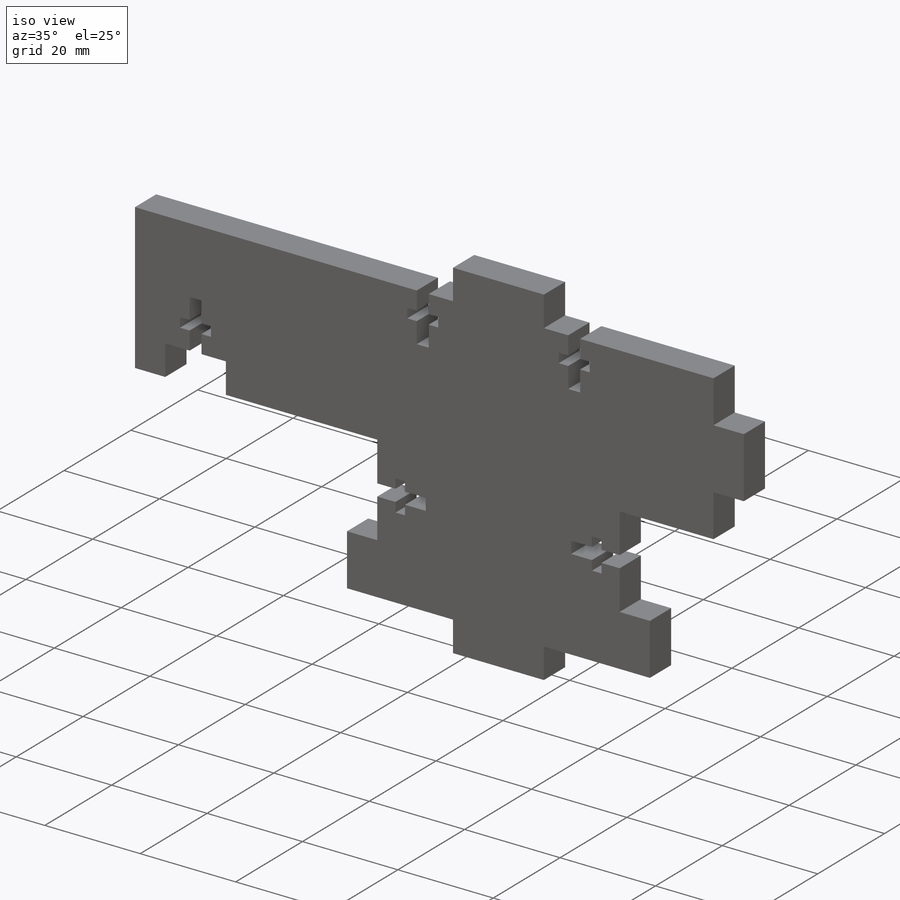
[diagram: iso view]
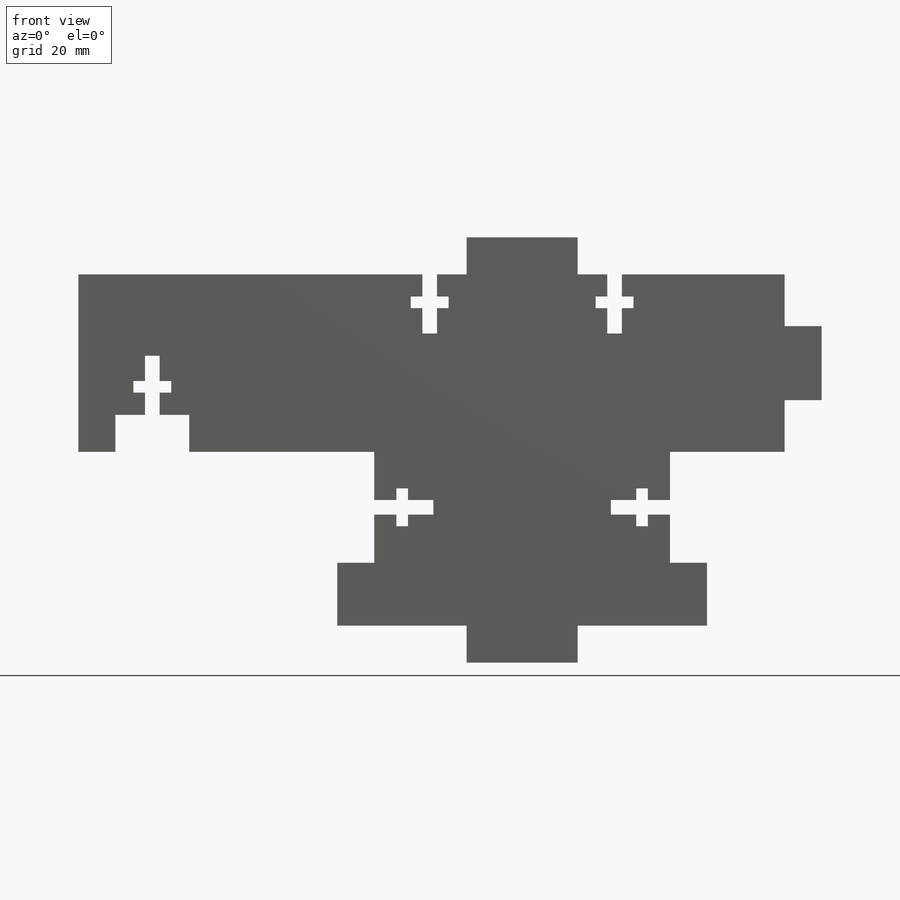
[diagram: front view]
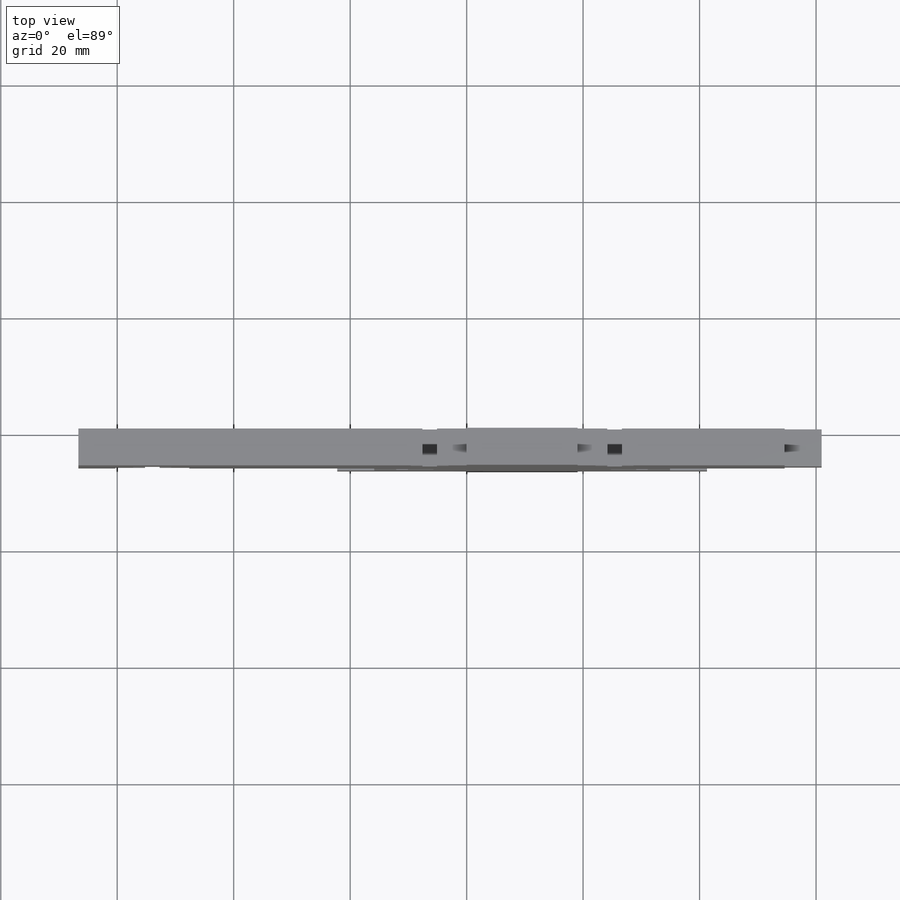
[diagram: top view]
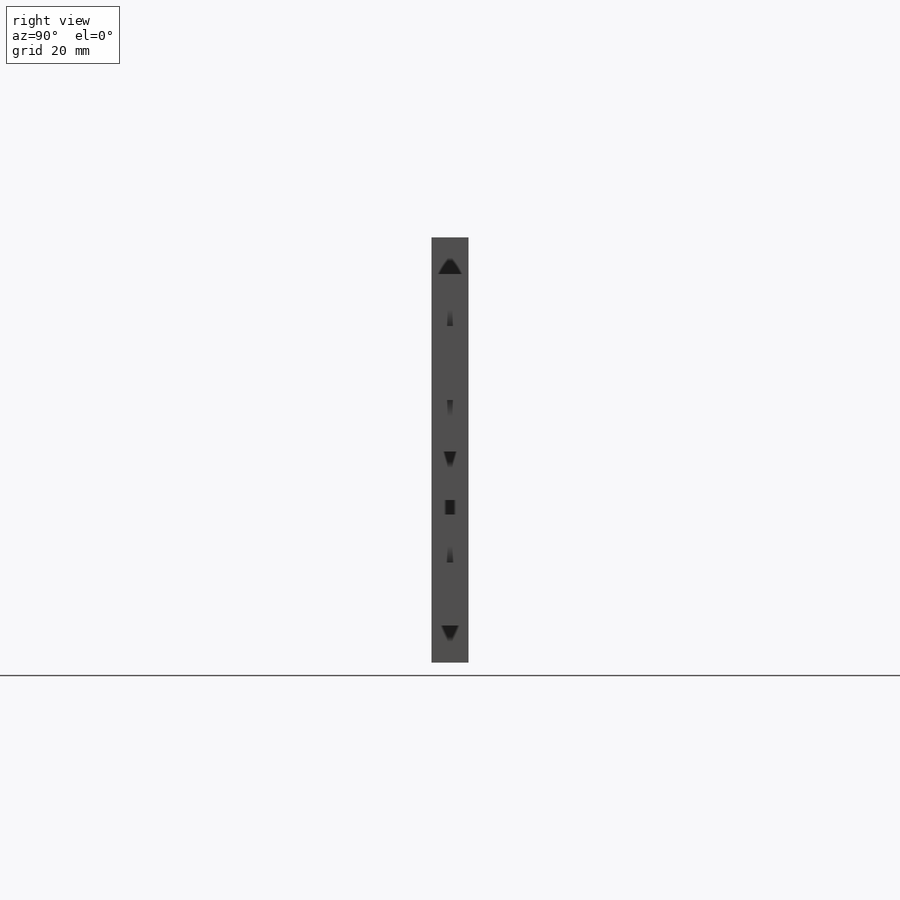
[diagram: right view]
SOLIDWORKS PART (.sldprt)
format: sldprt  version: not decoded by parser v0  size: 356,864 bytes
history: native  units: mm
features: sketch x4, cut_extrude x3, material x1, extrude x1 (+13 scaffold rows collapsed)
feature tree (22):
  scaffold x13  (default folders/planes/origin — collapsed)
  material  "Material <not specified>"
  sketch  "Sketch1"  dims[c1.D1=73.025mm c1.D2=25.4mm c1.D3=19.05mm c1.D4=6.35mm c2.D1=73.025mm c2.D2=50.8mm c2.D5=6.35mm c2.D6=25.4mm c2.D7=~30.823674mm c3.D2=6.35mm c3.D7=15.875mm c4.D2=6.35mm c4.D5=19.05mm c4.D6=127.635mm c4.D8=6.35mm c4.D9=12.7mm c4.D10=30.48mm c4.D11=50.8mm]
  extrude  "Boss-Extrude1"  Depth=6.35mm
  sketch  "Sketch2"  dims[D1=12.7mm D2=6.35mm D3=6.35mm]
  cut_extrude  "Cut-Extrude1"  [1 undecoded]
  sketch  "Sketch3"  dims[c1.D1=73.025mm c1.D2=25.4mm c1.D3=19.05mm c1.D4=6.35mm c2.D1=73.025mm c2.D2=50.8mm c2.D5=6.35mm c2.D6=19.05mm c2.D7=~30.823674mm c3.D2=6.35mm c3.D7=15.875mm c3.D8=30.48mm c3.D9=2.5mm c3.D10=2.0mm c3.D11=3.81mm c3.D12=10.16mm c4.D2=3.81mm c4.D3=10.16mm]
  cut_extrude  "Cut-Extrude2"  [1 undecoded]
  sketch  "Sketch5"  dims[c1.D1=73.025mm c1.D2=25.4mm c1.D3=19.05mm c1.D4=6.35mm c2.D1=73.025mm c2.D2=50.8mm c2.D5=6.35mm c2.D6=19.05mm c2.D7=~30.823674mm c3.D2=6.35mm c3.D7=15.875mm c3.D8=30.48mm c3.D9=2.5mm c3.D10=2.0mm c3.D11=3.81mm c3.D12=10.16mm c3.D13=6.35mm c3.D14=6.35mm c3.D1=5.1mm c4.D2=8.275mm c4.D3=3.81mm c4.D4=2.0mm c4.D5=4.35mm c4.D6=2.0mm]
  cut_extrude  "Cut-Extrude3"  [1 undecoded]
decode coverage: 5 of 8 modeling features carry decoded parameters
note: ~ marks probable driven/reference dimensions
note: 3 parameter values undecoded
summary: no parameter record found for 3 features
note: suppression state not decoded; provenance and decode notes live in map.json
